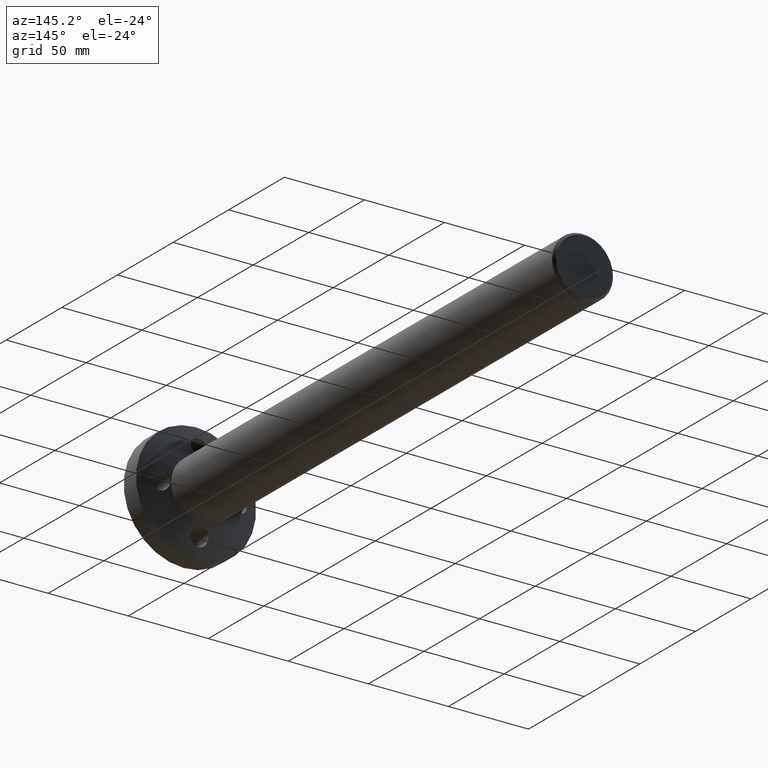
[diagram: clean part render]
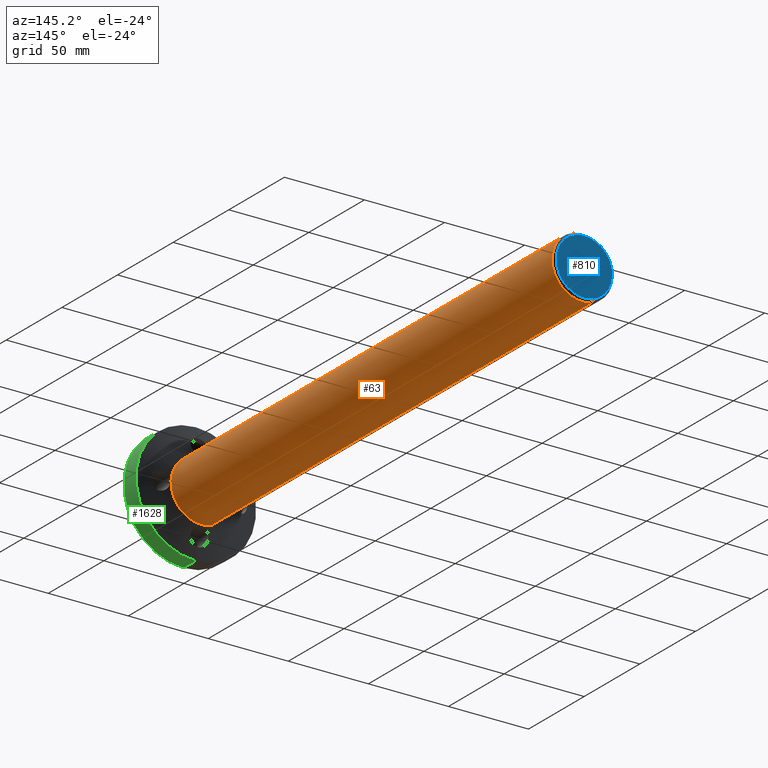
[diagram: same view with three faces highlighted in distinct colors, each labeled with its STEP entity id]
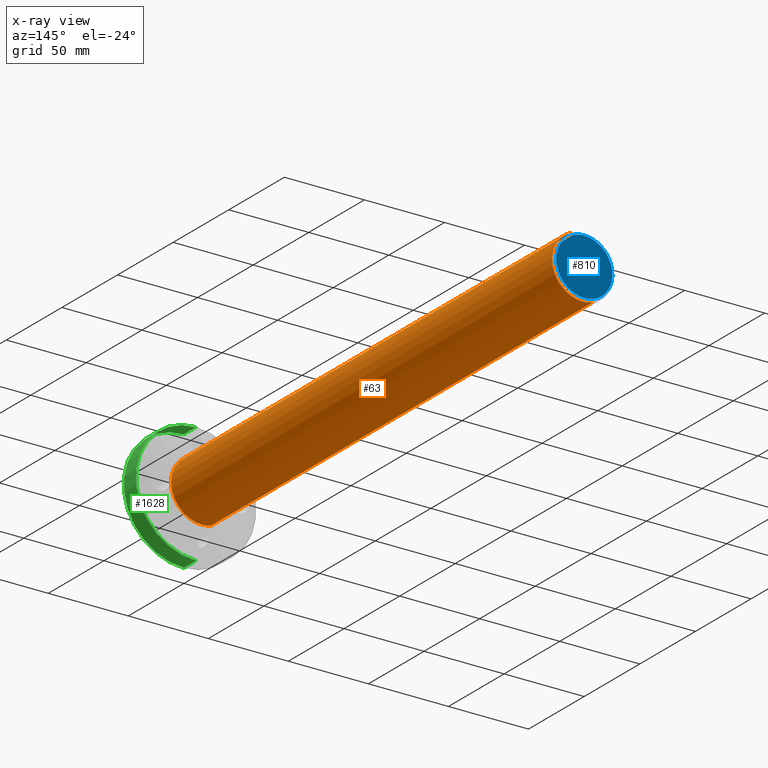
[diagram: x-ray of the same camera — body ghosted, the three highlighted faces saturated]
A machine part, auxiliary view with three faces highlighted in distinct colors.
The next image is the same camera in x-ray (body ghosted, the three faces saturated) — at least one of them is partly hidden behind the body in this view.
Their STEP definitions:

[orange] entity #63 — the highlighted cylindrical surface (partial cylindrical patch) has radius 19.05 mm, axis along (0, -1, 0).
#11 = VERTEX_POINT ( 'NONE', #961 ) ;
#63 = ADVANCED_FACE ( 'NONE', ( #671 ), #1659, .T. ) ;
#140 = DIRECTION ( 'NONE',  ( 0.0000000000000000000, -1.000000000000000000, 0.0000000000000000000 ) ) ;
#203 = CARTESIAN_POINT ( 'NONE',  ( -46.05816251671768000, 61.00828633459433100, -3.330357665184100500 ) ) ;
#357 = CARTESIAN_POINT ( 'NONE',  ( -40.10366966046341700, 414.0271988641451300, 14.76512560619659600 ) ) ;
#385 = CARTESIAN_POINT ( 'NONE',  ( -46.05816251671768000, 71.52719886414516300, -3.330357665184100500 ) ) ;
#408 = DIRECTION ( 'NONE',  ( 0.0000000000000000000, -1.000000000000000000, 0.0000000000000000000 ) ) ;
#424 = EDGE_CURVE ( 'NONE', #1211, #11, #834, .T. ) ;
#425 = ORIENTED_EDGE ( 'NONE', *, *, #424, .F. ) ;
#489 = ORIENTED_EDGE ( 'NONE', *, *, #1121, .F. ) ;
#658 = DIRECTION ( 'NONE',  ( 0.3125718034779135200, 0.0000000000000000000, 0.9498941349806117000 ) ) ;
#671 = FACE_OUTER_BOUND ( 'NONE', #1233, .T. ) ;
#725 = DIRECTION ( 'NONE',  ( 0.3125718034779135800, 0.0000000000000000000, 0.9498941349806117000 ) ) ;
#740 = ORIENTED_EDGE ( 'NONE', *, *, #1205, .T. ) ;
#767 = VECTOR ( 'NONE', #408, 1000.000000000000000 ) ;
#813 = VERTEX_POINT ( 'NONE', #357 ) ;
#834 = LINE ( 'NONE', #1348, #1418 ) ;
#870 = CIRCLE ( 'NONE', #1124, 19.05000000000004700 ) ;
#961 = CARTESIAN_POINT ( 'NONE',  ( -52.01265537297193500, 71.52719886414516300, -21.42584093656475000 ) ) ;
#1011 = ORIENTED_EDGE ( 'NONE', *, *, #1470, .T. ) ;
#1050 = DIRECTION ( 'NONE',  ( 0.0000000000000000000, -1.000000000000000000, 0.0000000000000000000 ) ) ;
#1059 = CARTESIAN_POINT ( 'NONE',  ( -52.01265537297193500, 414.0271988641451300, -21.42584093656475400 ) ) ;
#1068 = CARTESIAN_POINT ( 'NONE',  ( -46.05816251671768000, 414.0271988641451300, -3.330357665184100500 ) ) ;
#1086 = DIRECTION ( 'NONE',  ( 0.0000000000000000000, -1.000000000000000000, 0.0000000000000000000 ) ) ;
#1121 = EDGE_CURVE ( 'NONE', #11, #1344, #1264, .T. ) ;
#1124 = AXIS2_PLACEMENT_3D ( 'NONE', #1068, #140, #658 ) ;
#1188 = CARTESIAN_POINT ( 'NONE',  ( -40.10366966046341700, 61.00828633459433100, 14.76512560619659300 ) ) ;
#1205 = EDGE_CURVE ( 'NONE', #1211, #813, #870, .T. ) ;
#1211 = VERTEX_POINT ( 'NONE', #1059 ) ;
#1233 = EDGE_LOOP ( 'NONE', ( #425, #740, #1011, #489 ) ) ;
#1264 = CIRCLE ( 'NONE', #1338, 19.05000000000004300 ) ;
#1334 = CARTESIAN_POINT ( 'NONE',  ( -40.10366966046341700, 71.52719886414516300, 14.76512560619659300 ) ) ;
#1338 = AXIS2_PLACEMENT_3D ( 'NONE', #385, #1050, #1423 ) ;
#1344 = VERTEX_POINT ( 'NONE', #1334 ) ;
#1348 = CARTESIAN_POINT ( 'NONE',  ( -52.01265537297194900, 61.00828633459433100, -21.42584093656479600 ) ) ;
#1418 = VECTOR ( 'NONE', #1086, 1000.000000000000000 ) ;
#1423 = DIRECTION ( 'NONE',  ( 0.3125718034779135800, 0.0000000000000000000, 0.9498941349806117000 ) ) ;
#1467 = LINE ( 'NONE', #1188, #767 ) ;
#1470 = EDGE_CURVE ( 'NONE', #813, #1344, #1467, .T. ) ;
#1487 = AXIS2_PLACEMENT_3D ( 'NONE', #203, #1510, #725 ) ;
#1510 = DIRECTION ( 'NONE',  ( 0.0000000000000000000, -1.000000000000000000, 0.0000000000000000000 ) ) ;
#1659 = CYLINDRICAL_SURFACE ( 'NONE', #1487, 19.05000000000004300 ) ;

[blue] entity #810 — the highlighted planar face has unit normal (0, -1, 0).
#31 = CARTESIAN_POINT ( 'NONE',  ( -51.54379766775507900, 415.5271988641451300, -20.00099973409387700 ) ) ;
#88 = DIRECTION ( 'NONE',  ( 0.0000000000000000000, -1.000000000000000000, 0.0000000000000000000 ) ) ;
#130 = DIRECTION ( 'NONE',  ( 0.3125718034779134700, 0.0000000000000000000, 0.9498941349806115900 ) ) ;
#169 = AXIS2_PLACEMENT_3D ( 'NONE', #267, #790, #932 ) ;
#210 = EDGE_CURVE ( 'NONE', #1391, #1664, #1685, .T. ) ;
#267 = CARTESIAN_POINT ( 'NONE',  ( -46.05816251671768000, 415.5271988641451300, -3.330357665184100500 ) ) ;
#353 = CIRCLE ( 'NONE', #854, 17.55000000000004300 ) ;
#464 = DIRECTION ( 'NONE',  ( 0.3125718034779134100, 0.0000000000000000000, 0.9498941349806118200 ) ) ;
#790 = DIRECTION ( 'NONE',  ( 0.0000000000000000000, -1.000000000000000000, 0.0000000000000000000 ) ) ;
#810 = ADVANCED_FACE ( 'NONE', ( #1551 ), #1558, .F. ) ;
#854 = AXIS2_PLACEMENT_3D ( 'NONE', #1261, #88, #464 ) ;
#904 = EDGE_LOOP ( 'NONE', ( #992, #1172 ) ) ;
#932 = DIRECTION ( 'NONE',  ( 0.3125718034779134100, 0.0000000000000000000, 0.9498941349806118200 ) ) ;
#962 = CARTESIAN_POINT ( 'NONE',  ( -40.57252736568028700, 415.5271988641451300, 13.34028440372567600 ) ) ;
#992 = ORIENTED_EDGE ( 'NONE', *, *, #210, .F. ) ;
#1057 = EDGE_CURVE ( 'NONE', #1664, #1391, #353, .T. ) ;
#1171 = DIRECTION ( 'NONE',  ( 0.0000000000000000000, -1.000000000000000000, 0.0000000000000000000 ) ) ;
#1172 = ORIENTED_EDGE ( 'NONE', *, *, #1057, .F. ) ;
#1261 = CARTESIAN_POINT ( 'NONE',  ( -46.05816251671768000, 415.5271988641451300, -3.330357665184100500 ) ) ;
#1287 = CARTESIAN_POINT ( 'NONE',  ( -29.38752044780790500, 415.5271988641451300, -8.815992816221495300 ) ) ;
#1391 = VERTEX_POINT ( 'NONE', #962 ) ;
#1551 = FACE_OUTER_BOUND ( 'NONE', #904, .T. ) ;
#1558 = PLANE ( 'NONE',  #1652 ) ;
#1652 = AXIS2_PLACEMENT_3D ( 'NONE', #1287, #1171, #130 ) ;
#1664 = VERTEX_POINT ( 'NONE', #31 ) ;
#1685 = CIRCLE ( 'NONE', #169, 17.55000000000004300 ) ;

[green] entity #1628 — the highlighted cylindrical surface (partial cylindrical patch) has radius 37.5 mm, axis along (-0, -1, -0).
#14 = CARTESIAN_POINT ( 'NONE',  ( -46.05816251671765800, 38.82294354499621400, 34.16964233481589700 ) ) ;
#74 = LINE ( 'NONE', #1061, #1183 ) ;
#125 = DIRECTION ( 'NONE',  ( -0.0000000000000000000, -1.000000000000000000, -0.0000000000000000000 ) ) ;
#241 = AXIS2_PLACEMENT_3D ( 'NONE', #579, #1597, #1215 ) ;
#277 = FACE_OUTER_BOUND ( 'NONE', #1191, .T. ) ;
#341 = EDGE_CURVE ( 'NONE', #1561, #928, #698, .T. ) ;
#349 = VERTEX_POINT ( 'NONE', #661 ) ;
#404 = ORIENTED_EDGE ( 'NONE', *, *, #1557, .F. ) ;
#579 = CARTESIAN_POINT ( 'NONE',  ( -46.05816251671766500, 38.82294354499621400, -3.330357665184104500 ) ) ;
#618 = EDGE_CURVE ( 'NONE', #349, #1561, #1495, .T. ) ;
#634 = VERTEX_POINT ( 'NONE', #713 ) ;
#661 = CARTESIAN_POINT ( 'NONE',  ( -46.05816251671766500, 66.52719886414514900, -40.83035766518411000 ) ) ;
#667 = AXIS2_PLACEMENT_3D ( 'NONE', #1509, #1643, #1105 ) ;
#682 = CARTESIAN_POINT ( 'NONE',  ( -46.05816251671766500, 66.52719886414514900, 34.16964233481590400 ) ) ;
#698 = LINE ( 'NONE', #14, #855 ) ;
#703 = ORIENTED_EDGE ( 'NONE', *, *, #618, .T. ) ;
#713 = CARTESIAN_POINT ( 'NONE',  ( -46.05816251671766500, 55.52719886414515600, -40.83035766518410300 ) ) ;
#855 = VECTOR ( 'NONE', #125, 1000.000000000000000 ) ;
#928 = VERTEX_POINT ( 'NONE', #1549 ) ;
#1061 = CARTESIAN_POINT ( 'NONE',  ( -46.05816251671766500, 38.82294354499621400, -40.83035766518410300 ) ) ;
#1101 = AXIS2_PLACEMENT_3D ( 'NONE', #1331, #1585, #1201 ) ;
#1105 = DIRECTION ( 'NONE',  ( 0.0000000000000000000, 0.0000000000000000000, -1.000000000000000000 ) ) ;
#1135 = ORIENTED_EDGE ( 'NONE', *, *, #341, .T. ) ;
#1183 = VECTOR ( 'NONE', #1185, 1000.000000000000000 ) ;
#1185 = DIRECTION ( 'NONE',  ( -0.0000000000000000000, -1.000000000000000000, -0.0000000000000000000 ) ) ;
#1191 = EDGE_LOOP ( 'NONE', ( #703, #1135, #1483, #404 ) ) ;
#1201 = DIRECTION ( 'NONE',  ( 0.0000000000000000000, 0.0000000000000000000, -1.000000000000000000 ) ) ;
#1215 = DIRECTION ( 'NONE',  ( 0.0000000000000000000, 0.0000000000000000000, -1.000000000000000000 ) ) ;
#1280 = EDGE_CURVE ( 'NONE', #634, #928, #1488, .T. ) ;
#1331 = CARTESIAN_POINT ( 'NONE',  ( -46.05816251671766500, 55.52719886414515600, -3.330357665184104500 ) ) ;
#1381 = CYLINDRICAL_SURFACE ( 'NONE', #241, 37.50000000000000000 ) ;
#1483 = ORIENTED_EDGE ( 'NONE', *, *, #1280, .F. ) ;
#1488 = CIRCLE ( 'NONE', #1101, 37.50000000000000000 ) ;
#1495 = CIRCLE ( 'NONE', #667, 37.50000000000000000 ) ;
#1509 = CARTESIAN_POINT ( 'NONE',  ( -46.05816251671766500, 66.52719886414514900, -3.330357665184104500 ) ) ;
#1549 = CARTESIAN_POINT ( 'NONE',  ( -46.05816251671765800, 55.52719886414515600, 34.16964233481589700 ) ) ;
#1557 = EDGE_CURVE ( 'NONE', #349, #634, #74, .T. ) ;
#1561 = VERTEX_POINT ( 'NONE', #682 ) ;
#1585 = DIRECTION ( 'NONE',  ( -0.0000000000000000000, -1.000000000000000000, -0.0000000000000000000 ) ) ;
#1597 = DIRECTION ( 'NONE',  ( -0.0000000000000000000, -1.000000000000000000, -0.0000000000000000000 ) ) ;
#1628 = ADVANCED_FACE ( 'NONE', ( #277 ), #1381, .T. ) ;
#1643 = DIRECTION ( 'NONE',  ( -0.0000000000000000000, -1.000000000000000000, -0.0000000000000000000 ) ) ;